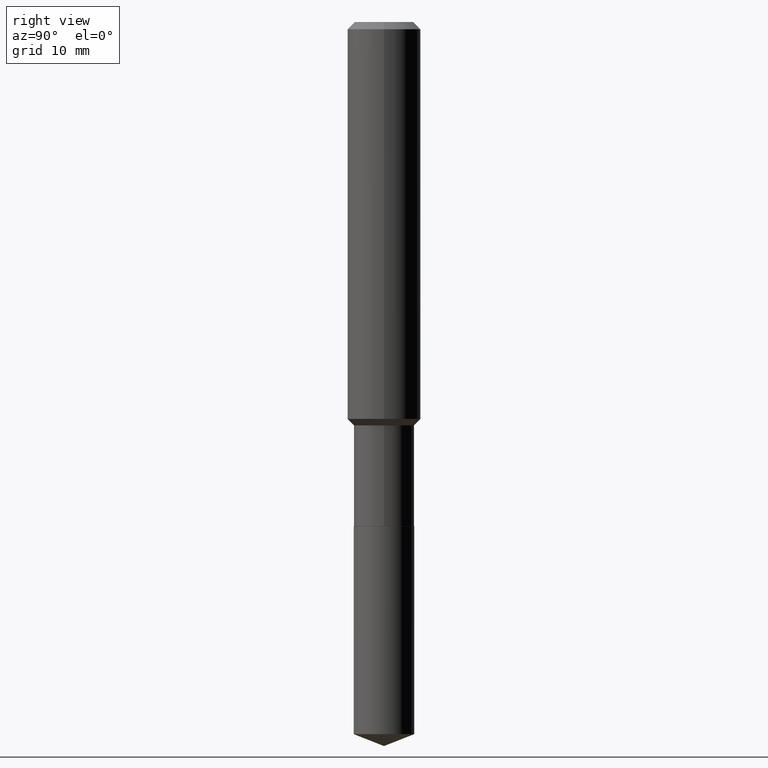
[diagram: clean part render]
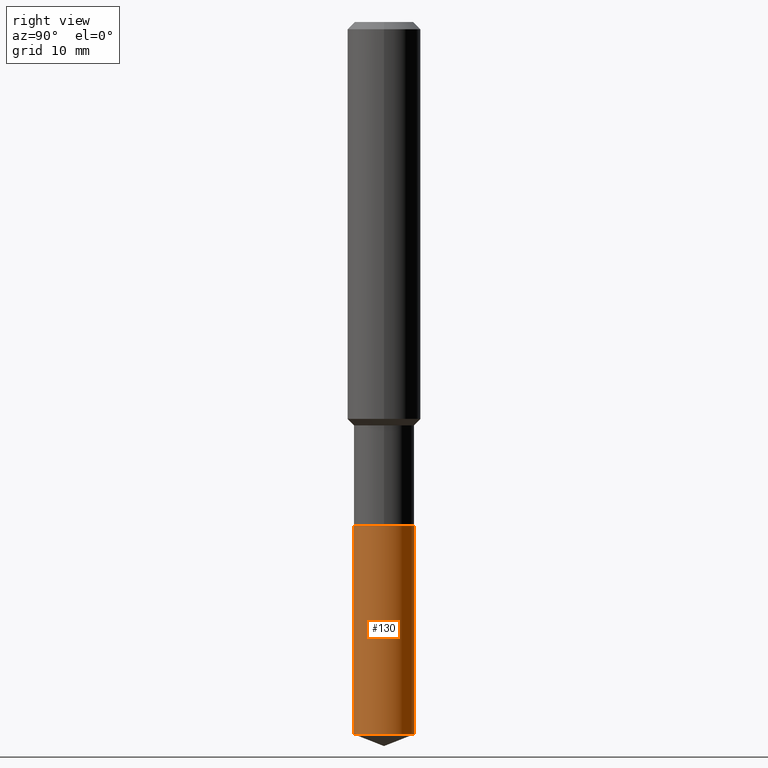
[diagram: same view with one face highlighted and labeled with its STEP entity id]
A machine part, right view. The second image highlights one B-rep face of the part: STEP entity #130.
In plain terms, the highlighted cylindrical surface (edge-blend (fillet) strip) has radius 3.2995 mm, axis along (-0, 0, 1).
Its self-contained STEP definition (entity closure, byte-faithful):
#1 = EDGE_CURVE ( 'NONE', #54, #28, #373, .T. ) ;
#18 = VECTOR ( 'NONE', #334, 39.37007874015748143 ) ;
#19 = EDGE_CURVE ( 'NONE', #68, #51, #183, .T. ) ;
#28 = VERTEX_POINT ( 'NONE', #327 ) ;
#48 = EDGE_CURVE ( 'NONE', #54, #68, #84, .T. ) ;
#51 = VERTEX_POINT ( 'NONE', #263 ) ;
#54 = VERTEX_POINT ( 'NONE', #139 ) ;
#68 = VERTEX_POINT ( 'NONE', #256 ) ;
#69 = DIRECTION ( 'NONE',  ( -6.982962677686266711E-15, -1.000000000000000000, 4.206078512185163024E-15 ) ) ;
#84 = CIRCLE ( 'NONE', #223, 0.1298999999999999877 ) ;
#121 = CYLINDRICAL_SURFACE ( 'NONE', #133, 0.1298999999999999877 ) ;
#130 = ADVANCED_FACE ( 'NONE', ( #458 ), #121, .T. ) ;
#133 = AXIS2_PLACEMENT_3D ( 'NONE', #292, #179, #69 ) ;
#139 = CARTESIAN_POINT ( 'NONE',  ( -9.070868518313710503E-16, -0.1299000000000106736, -3.059031029217619047 ) ) ;
#142 = AXIS2_PLACEMENT_3D ( 'NONE', #250, #415, #226 ) ;
#146 = DIRECTION ( 'NONE',  ( -6.982962677686266711E-15, -1.000000000000000000, 4.206078512185163024E-15 ) ) ;
#150 = CARTESIAN_POINT ( 'NONE',  ( 7.480633217331380672E-29, -1.068073841517227497E-14, -3.059031029217619935 ) ) ;
#156 = VECTOR ( 'NONE', #445, 39.37007874015748143 ) ;
#170 = EDGE_LOOP ( 'NONE', ( #443, #422, #436, #419 ) ) ;
#179 = DIRECTION ( 'NONE',  ( -2.445321399674212677E-29, 3.491692433356646244E-15, 1.000000000000000000 ) ) ;
#180 = CARTESIAN_POINT ( 'NONE',  ( 9.229950137524229077E-16, 0.1298999999999924382, -2.165300000000000669 ) ) ;
#183 = LINE ( 'NONE', #180, #18 ) ;
#187 = CARTESIAN_POINT ( 'NONE',  ( -9.070868518313931384E-16, -0.1299000000000075650, -2.165299999999999336 ) ) ;
#223 = AXIS2_PLACEMENT_3D ( 'NONE', #150, #488, #146 ) ;
#226 = DIRECTION ( 'NONE',  ( -6.982962677686266711E-15, -1.000000000000000000, 4.206078512185163024E-15 ) ) ;
#250 = CARTESIAN_POINT ( 'NONE',  ( 5.295173606032675561E-29, -7.560104542997063911E-15, -2.165299999999999780 ) ) ;
#256 = CARTESIAN_POINT ( 'NONE',  ( 9.229950137524447986E-16, 0.1298999999999893296, -3.059031029217620379 ) ) ;
#260 = CIRCLE ( 'NONE', #142, 0.1298999999999999877 ) ;
#263 = CARTESIAN_POINT ( 'NONE',  ( 9.229950137524449958E-16, 0.1298999999999924382, -2.165300000000000669 ) ) ;
#292 = CARTESIAN_POINT ( 'NONE',  ( 5.295173606032675561E-29, -7.560104542997063911E-15, -2.165299999999999780 ) ) ;
#327 = CARTESIAN_POINT ( 'NONE',  ( -9.070868518313931384E-16, -0.1299000000000075650, -2.165299999999999336 ) ) ;
#334 = DIRECTION ( 'NONE',  ( -2.445321399674212397E-29, 3.491692433356646639E-15, 1.000000000000000000 ) ) ;
#336 = EDGE_CURVE ( 'NONE', #28, #51, #260, .T. ) ;
#373 = LINE ( 'NONE', #187, #156 ) ;
#415 = DIRECTION ( 'NONE',  ( -2.445321399674212677E-29, 3.491692433356646244E-15, 1.000000000000000000 ) ) ;
#419 = ORIENTED_EDGE ( 'NONE', *, *, #1, .F. ) ;
#422 = ORIENTED_EDGE ( 'NONE', *, *, #19, .T. ) ;
#436 = ORIENTED_EDGE ( 'NONE', *, *, #336, .F. ) ;
#443 = ORIENTED_EDGE ( 'NONE', *, *, #48, .T. ) ;
#445 = DIRECTION ( 'NONE',  ( -2.445321399674212397E-29, 3.491692433356646639E-15, 1.000000000000000000 ) ) ;
#458 = FACE_OUTER_BOUND ( 'NONE', #170, .T. ) ;
#488 = DIRECTION ( 'NONE',  ( -2.445321399674212677E-29, 3.491692433356646244E-15, 1.000000000000000000 ) ) ;